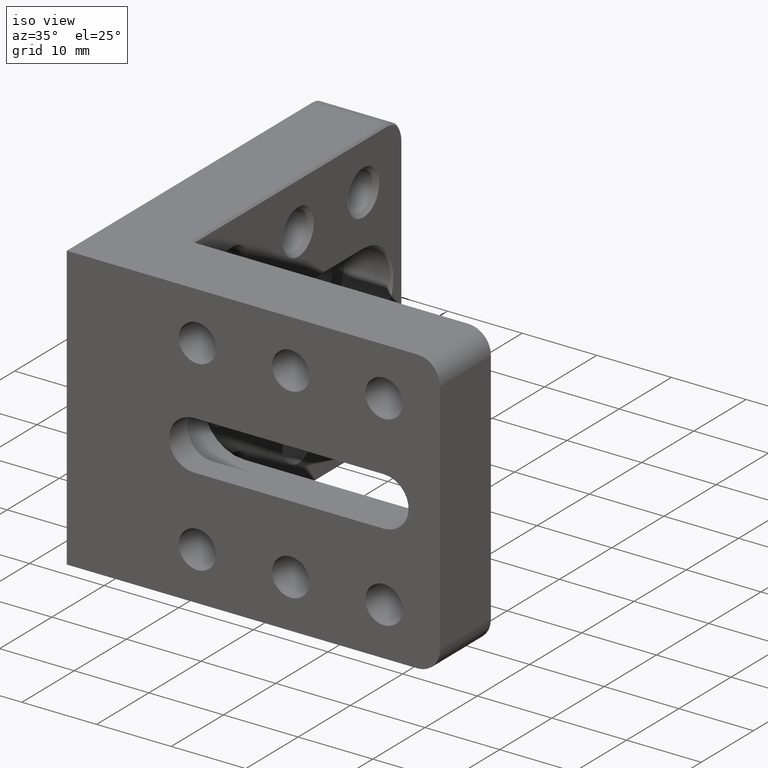
[diagram: clean part render]
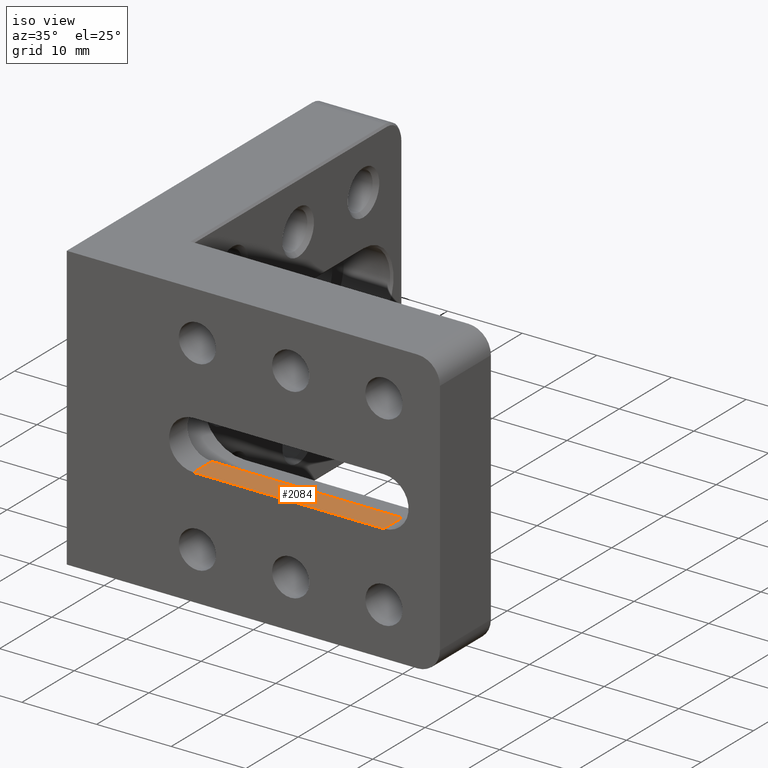
[diagram: same view with one face highlighted and labeled with its STEP entity id]
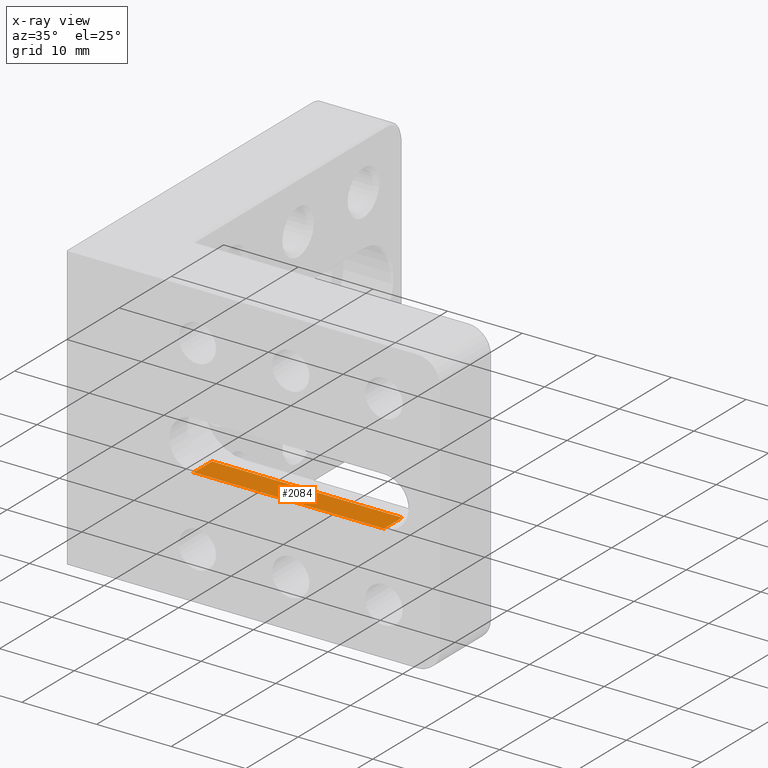
[diagram: x-ray of the same camera — body ghosted, the highlighted face saturated]
A machine part, iso view. The second image highlights one B-rep face of the part: STEP entity #2084.
The next image is the same camera in x-ray: the body ghosted, the highlighted face saturated — about 0% of this face is hidden behind the body in this view.
In plain terms, the highlighted planar face has unit normal (0, 0, -1).
Its self-contained STEP definition (entity closure, byte-faithful):
#44 = ORIENTED_EDGE ( 'NONE', *, *, #491, .T. ) ;
#81 = LINE ( 'NONE', #1075, #786 ) ;
#180 = EDGE_LOOP ( 'NONE', ( #44, #1137, #1818, #277 ) ) ;
#212 = LINE ( 'NONE', #1528, #1417 ) ;
#277 = ORIENTED_EDGE ( 'NONE', *, *, #1532, .F. ) ;
#387 = AXIS2_PLACEMENT_3D ( 'NONE', #1047, #2023, #411 ) ;
#411 = DIRECTION ( 'NONE',  ( -1.000000000000000000, 0.000000000000000000, -0.000000000000000000 ) ) ;
#423 = VECTOR ( 'NONE', #2015, 1000.000000000000000 ) ;
#427 = EDGE_CURVE ( 'NONE', #580, #584, #885, .T. ) ;
#430 = DIRECTION ( 'NONE',  ( -0.000000000000000000, 1.000000000000000000, -0.000000000000000000 ) ) ;
#491 = EDGE_CURVE ( 'NONE', #848, #580, #81, .T. ) ;
#523 = CARTESIAN_POINT ( 'NONE',  ( 17.49999999999999645, 0.000000000000000000, -3.299999999999999822 ) ) ;
#567 = CARTESIAN_POINT ( 'NONE',  ( 17.49999999999999645, 3.500000000000000444, -3.299999999999999822 ) ) ;
#580 = VERTEX_POINT ( 'NONE', #567 ) ;
#584 = VERTEX_POINT ( 'NONE', #2025 ) ;
#595 = EDGE_CURVE ( 'NONE', #657, #584, #1889, .T. ) ;
#602 = CARTESIAN_POINT ( 'NONE',  ( -8.000000000000000000, -36.50000000000000000, -3.299999999999999822 ) ) ;
#657 = VERTEX_POINT ( 'NONE', #2102 ) ;
#716 = CARTESIAN_POINT ( 'NONE',  ( -8.000000000000000000, 3.500000000000000444, -3.299999999999999822 ) ) ;
#786 = VECTOR ( 'NONE', #430, 1000.000000000000000 ) ;
#848 = VERTEX_POINT ( 'NONE', #523 ) ;
#885 = LINE ( 'NONE', #716, #423 ) ;
#899 = VECTOR ( 'NONE', #1407, 1000.000000000000000 ) ;
#1047 = CARTESIAN_POINT ( 'NONE',  ( -8.000000000000000000, -36.50000000000000000, -3.299999999999999822 ) ) ;
#1075 = CARTESIAN_POINT ( 'NONE',  ( 17.49999999999999645, -36.50000000000000000, -3.299999999999999822 ) ) ;
#1137 = ORIENTED_EDGE ( 'NONE', *, *, #427, .T. ) ;
#1198 = DIRECTION ( 'NONE',  ( -1.000000000000000000, 0.000000000000000000, 0.000000000000000000 ) ) ;
#1235 = PLANE ( 'NONE',  #387 ) ;
#1378 = FACE_OUTER_BOUND ( 'NONE', #180, .T. ) ;
#1407 = DIRECTION ( 'NONE',  ( -0.000000000000000000, 1.000000000000000000, -0.000000000000000000 ) ) ;
#1417 = VECTOR ( 'NONE', #1198, 1000.000000000000000 ) ;
#1528 = CARTESIAN_POINT ( 'NONE',  ( 0.000000000000000000, 0.000000000000000000, -3.299999999999999822 ) ) ;
#1532 = EDGE_CURVE ( 'NONE', #848, #657, #212, .T. ) ;
#1818 = ORIENTED_EDGE ( 'NONE', *, *, #595, .F. ) ;
#1889 = LINE ( 'NONE', #602, #899 ) ;
#2015 = DIRECTION ( 'NONE',  ( -1.000000000000000000, -0.000000000000000000, -0.000000000000000000 ) ) ;
#2023 = DIRECTION ( 'NONE',  ( 0.000000000000000000, 0.000000000000000000, -1.000000000000000000 ) ) ;
#2025 = CARTESIAN_POINT ( 'NONE',  ( -8.000000000000000000, 3.500000000000000444, -3.299999999999999822 ) ) ;
#2084 = ADVANCED_FACE ( 'NONE', ( #1378 ), #1235, .F. ) ;
#2102 = CARTESIAN_POINT ( 'NONE',  ( -8.000000000000000000, 0.000000000000000000, -3.299999999999999822 ) ) ;